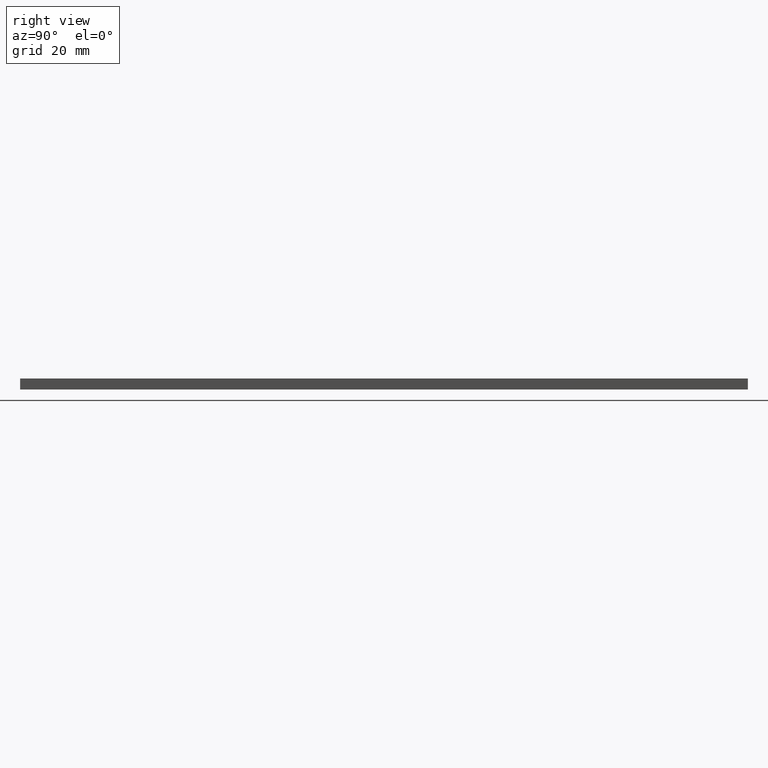
[diagram: clean part render]
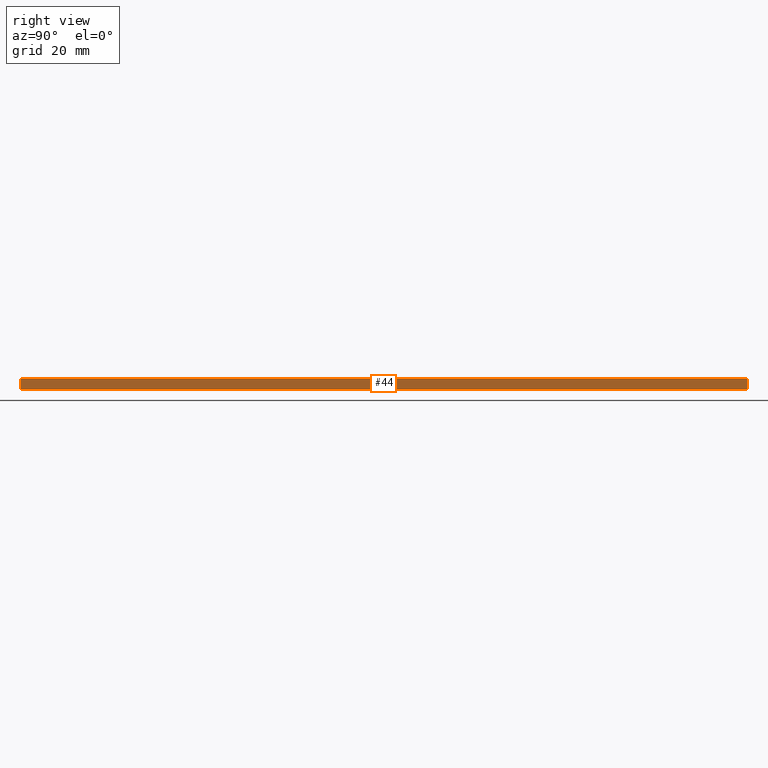
[diagram: same view with one face highlighted and labeled with its STEP entity id]
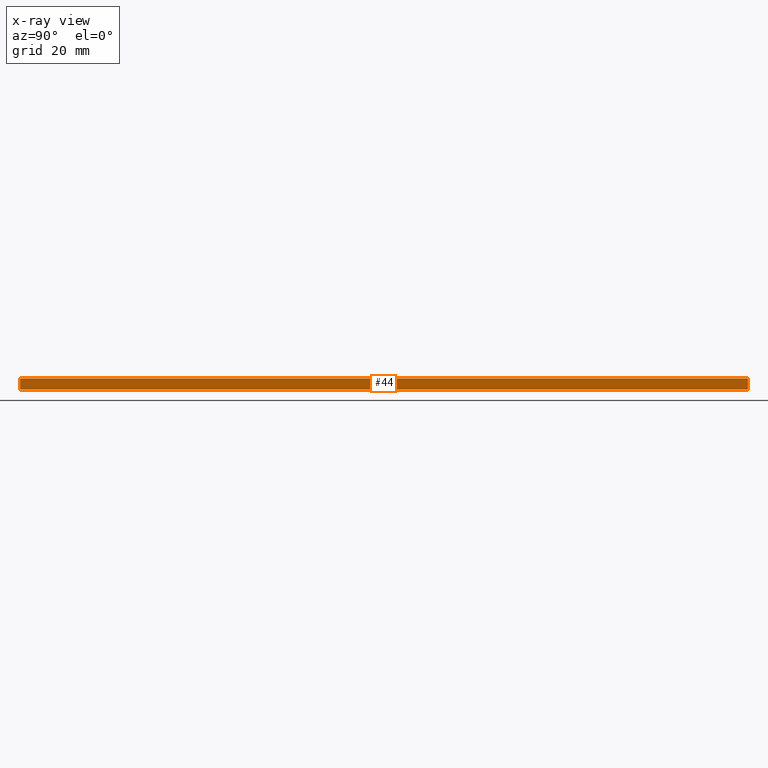
[diagram: x-ray of the same camera — body ghosted, the highlighted face saturated]
A machine part, right view. The second image highlights one B-rep face of the part: STEP entity #44.
The next image is the same camera in x-ray: the body ghosted, the highlighted face saturated — about 0% of this face is hidden behind the body in this view.
In plain terms, the highlighted planar face has unit normal (1, 0, 0).
Its self-contained STEP definition (entity closure, byte-faithful):
#44=ADVANCED_FACE('',(#87),#86,.T.);
#86=PLANE('',#129);
#87=FACE_OUTER_BOUND('',#130,.T.);
#126=CARTESIAN_POINT('',(-3.83984348923E+01,-1.00000000000E+01,-1.52317700058E+01));
#127=DIRECTION('',(1.00000000000E+00,0.00000000000E+00,0.00000000000E+00));
#128=DIRECTION('',(0.00000000000E+00,0.00000000000E+00,-1.00000000000E+00));
#129=AXIS2_PLACEMENT_3D('',#126,#127,#128);
#130=EDGE_LOOP('',(#152,#153,#154,#155));
#152=ORIENTED_EDGE('',*,*,#165,.F.);
#153=ORIENTED_EDGE('',*,*,#170,.F.);
#154=ORIENTED_EDGE('',*,*,#163,.T.);
#155=ORIENTED_EDGE('',*,*,#171,.T.);
#163=EDGE_CURVE('',#173,#187,#194,.T.);
#165=EDGE_CURVE('',#201,#208,#209,.T.);
#170=EDGE_CURVE('',#173,#201,#240,.T.);
#171=EDGE_CURVE('',#187,#208,#246,.T.);
#173=VERTEX_POINT('',#253);
#187=VERTEX_POINT('',#261);
#194=LINE('',#265,#266);
#201=VERTEX_POINT('',#269);
#208=VERTEX_POINT('',#273);
#209=LINE('',#274,#275);
#240=LINE('',#290,#291);
#246=LINE('',#293,#294);
#253=CARTESIAN_POINT('',(-3.83984348923E+01,2.00000000000E+02,-1.85317700058E+01));
#261=CARTESIAN_POINT('',(-3.83984348923E+01,2.00000000000E+02,-1.55317700058E+01));
#265=CARTESIAN_POINT('',(-3.83984348923E+01,2.00000000000E+02,-1.85317700058E+01));
#266=VECTOR('',#267,3.00000000000E+00);
#267=DIRECTION('',(0.00000000000E+00,0.00000000000E+00,1.00000000000E+00));
#269=CARTESIAN_POINT('',(-3.83984348923E+01,0.00000000000E+00,-1.85317700058E+01));
#273=CARTESIAN_POINT('',(-3.83984348923E+01,0.00000000000E+00,-1.55317700058E+01));
#274=CARTESIAN_POINT('',(-3.83984348923E+01,0.00000000000E+00,-1.85317700058E+01));
#275=VECTOR('',#276,3.00000000000E+00);
#276=DIRECTION('',(0.00000000000E+00,0.00000000000E+00,1.00000000000E+00));
#290=CARTESIAN_POINT('',(-3.83984348923E+01,2.00000000000E+02,-1.85317700058E+01));
#291=VECTOR('',#292,2.00000000000E+02);
#292=DIRECTION('',(0.00000000000E+00,-1.00000000000E+00,0.00000000000E+00));
#293=CARTESIAN_POINT('',(-3.83984348923E+01,2.00000000000E+02,-1.55317700058E+01));
#294=VECTOR('',#295,2.00000000000E+02);
#295=DIRECTION('',(0.00000000000E+00,-1.00000000000E+00,0.00000000000E+00));